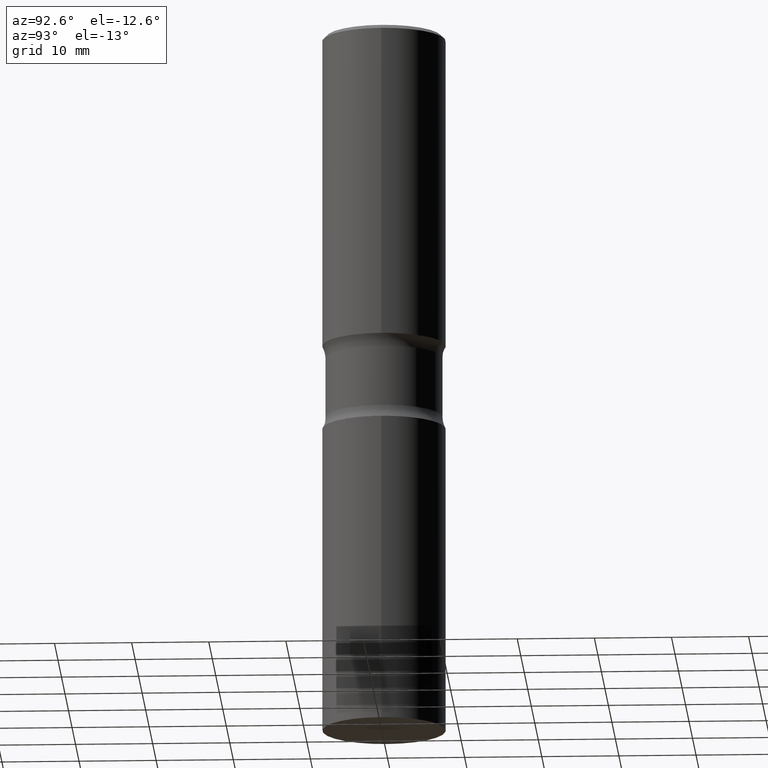
[diagram: clean part render]
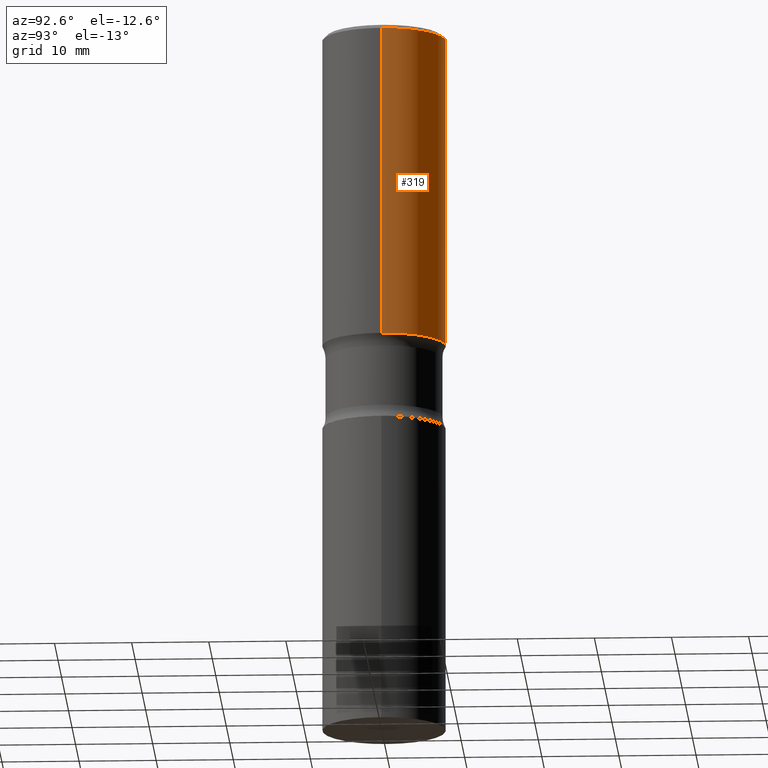
[diagram: same view with one face highlighted and labeled with its STEP entity id]
A machine part, auxiliary view. The second image highlights one B-rep face of the part: STEP entity #319.
In plain terms, the highlighted cylindrical surface (partial cylindrical patch) has radius 7.9997 mm, axis along (-0, 0, 1).
Its self-contained STEP definition (entity closure, byte-faithful):
#15 = EDGE_CURVE ( 'NONE', #317, #279, #396, .T. ) ;
#16 = ORIENTED_EDGE ( 'NONE', *, *, #15, .T. ) ;
#40 = VECTOR ( 'NONE', #306, 39.37007874015748143 ) ;
#41 = ORIENTED_EDGE ( 'NONE', *, *, #274, .F. ) ;
#67 = LINE ( 'NONE', #146, #40 ) ;
#69 = DIRECTION ( 'NONE',  ( 1.000000000000000000, -6.982962677686265922E-15, 0.000000000000000000 ) ) ;
#76 = VERTEX_POINT ( 'NONE', #254 ) ;
#77 = VECTOR ( 'NONE', #380, 39.37007874015748143 ) ;
#90 = VERTEX_POINT ( 'NONE', #271 ) ;
#101 = CARTESIAN_POINT ( 'NONE',  ( -0.3149499999999999522, 2.237854346276435196E-15, -1.549218606675782116E-29 ) ) ;
#102 = AXIS2_PLACEMENT_3D ( 'NONE', #186, #343, #108 ) ;
#106 = EDGE_CURVE ( 'NONE', #90, #76, #441, .T. ) ;
#108 = DIRECTION ( 'NONE',  ( 1.000000000000000000, -6.982962677686266711E-15, 4.876176775795935232E-29 ) ) ;
#130 = ORIENTED_EDGE ( 'NONE', *, *, #106, .F. ) ;
#133 = EDGE_LOOP ( 'NONE', ( #16, #321, #130, #41 ) ) ;
#146 = CARTESIAN_POINT ( 'NONE',  ( 0.3149499999999999522, -2.199284095337289476E-15, 1.535751875536929569E-29 ) ) ;
#152 = CARTESIAN_POINT ( 'NONE',  ( -0.3149500000000000077, -6.148604816253561985E-16, -1.614100000000000090 ) ) ;
#186 = CARTESIAN_POINT ( 'NONE',  ( 0.000000000000000000, 0.000000000000000000, 0.000000000000000000 ) ) ;
#195 = DIRECTION ( 'NONE',  ( -2.445468806185136597E-29, 3.491481338843145583E-15, 1.000000000000000000 ) ) ;
#198 = AXIS2_PLACEMENT_3D ( 'NONE', #425, #195, #69 ) ;
#212 = DIRECTION ( 'NONE',  ( 1.000000000000000000, -6.982962677686266711E-15, 0.000000000000000000 ) ) ;
#218 = DIRECTION ( 'NONE',  ( -2.445468806185136597E-29, 3.491481338843145583E-15, 1.000000000000000000 ) ) ;
#221 = FACE_OUTER_BOUND ( 'NONE', #133, .T. ) ;
#254 = CARTESIAN_POINT ( 'NONE',  ( -0.3149499999999998967, 2.129454468560425784E-15, -0.02000000000000006981 ) ) ;
#271 = CARTESIAN_POINT ( 'NONE',  ( 0.3149499999999998967, -2.230543471175006266E-15, -0.02000000000000006981 ) ) ;
#274 = EDGE_CURVE ( 'NONE', #317, #90, #67, .T. ) ;
#279 = VERTEX_POINT ( 'NONE', #152 ) ;
#295 = EDGE_CURVE ( 'NONE', #279, #76, #460, .T. ) ;
#306 = DIRECTION ( 'NONE',  ( -2.445468806185136877E-29, 3.491481338843145188E-15, 1.000000000000000000 ) ) ;
#317 = VERTEX_POINT ( 'NONE', #423 ) ;
#319 = ADVANCED_FACE ( 'NONE', ( #221 ), #466, .T. ) ;
#321 = ORIENTED_EDGE ( 'NONE', *, *, #295, .T. ) ;
#337 = CARTESIAN_POINT ( 'NONE',  ( 3.947231200063429727E-29, -5.635600029026721857E-15, -1.614100000000000090 ) ) ;
#343 = DIRECTION ( 'NONE',  ( -2.445468806185136597E-29, 3.491481338843145583E-15, 1.000000000000000000 ) ) ;
#380 = DIRECTION ( 'NONE',  ( -2.445468806185136877E-29, 3.491481338843145188E-15, 1.000000000000000000 ) ) ;
#396 = CIRCLE ( 'NONE', #472, 0.3149500000000000077 ) ;
#423 = CARTESIAN_POINT ( 'NONE',  ( 0.3149500000000000077, -7.834884124364012517E-15, -1.614100000000000090 ) ) ;
#425 = CARTESIAN_POINT ( 'NONE',  ( 4.890937612370289799E-31, -6.982962677686315028E-17, -0.02000000000000006981 ) ) ;
#441 = CIRCLE ( 'NONE', #198, 0.3149499999999998967 ) ;
#460 = LINE ( 'NONE', #101, #77 ) ;
#466 = CYLINDRICAL_SURFACE ( 'NONE', #102, 0.3149499999999999522 ) ;
#472 = AXIS2_PLACEMENT_3D ( 'NONE', #337, #218, #212 ) ;